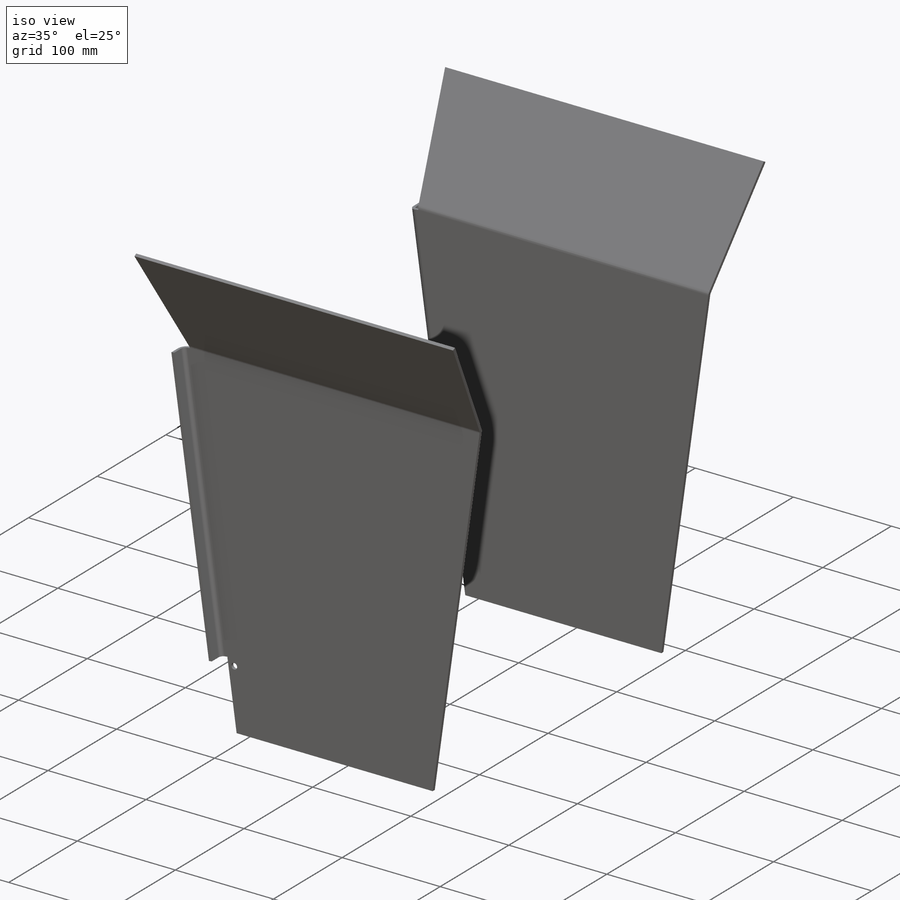
[diagram: iso view]
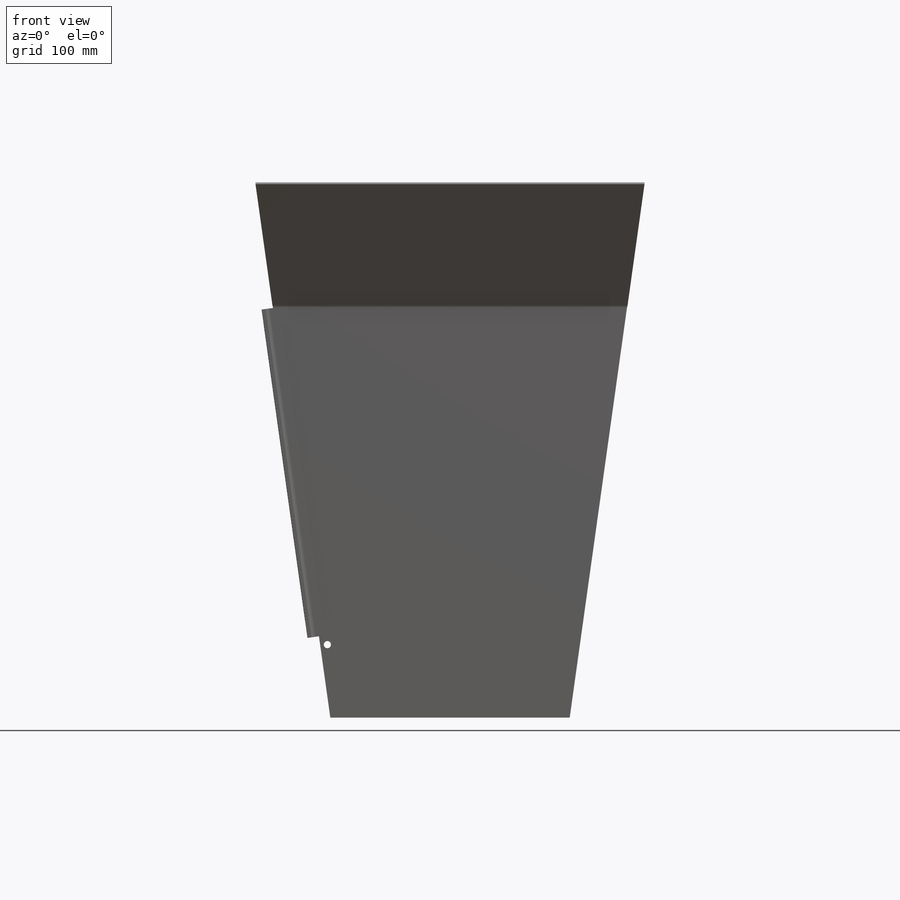
[diagram: front view]
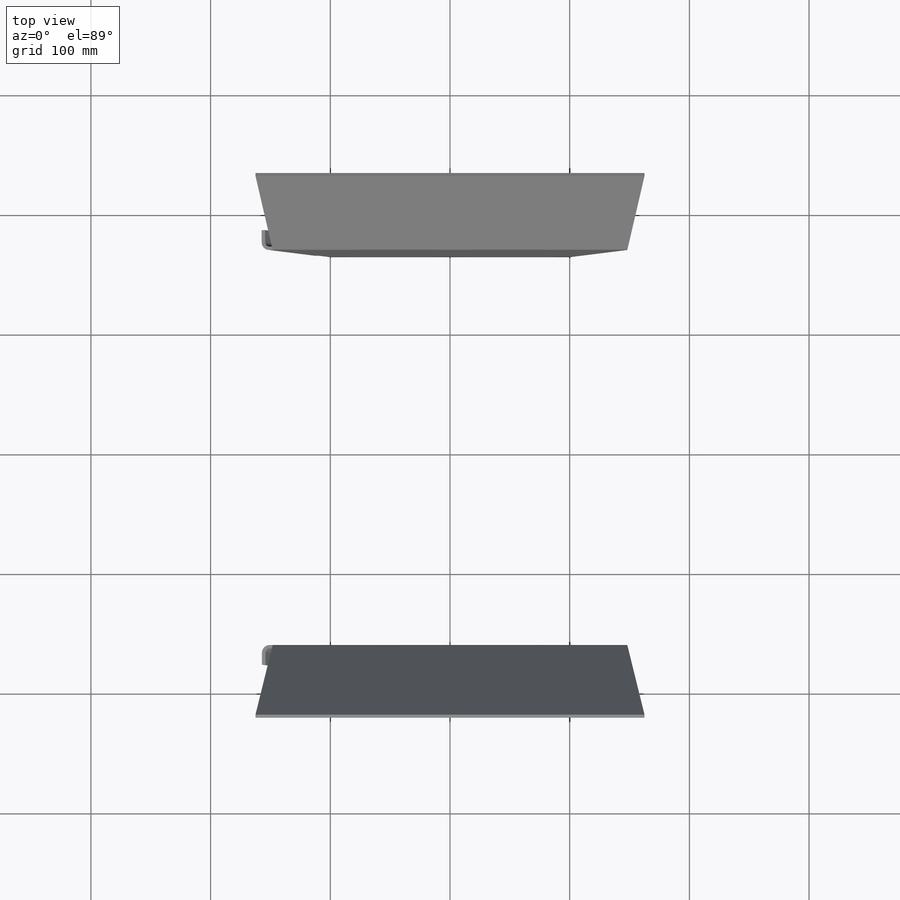
[diagram: top view]
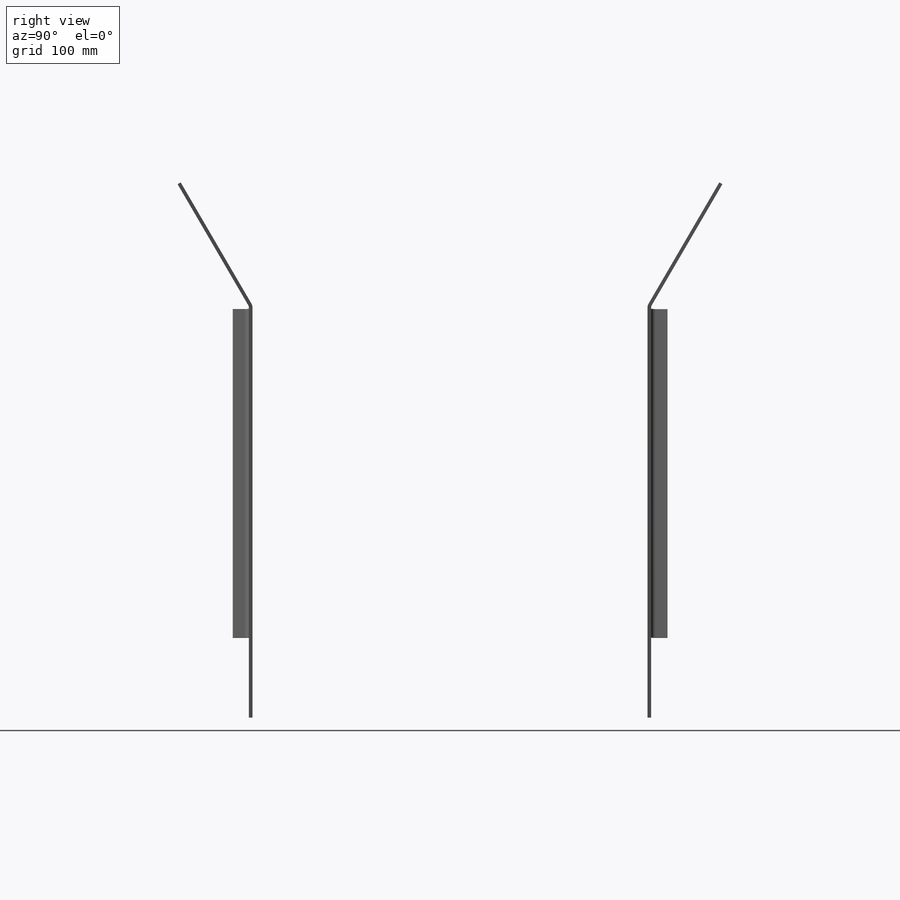
[diagram: right view]
SOLIDWORKS PART (.sldprt)
format: sldprt  version: not decoded by parser v0  size: 635,904 bytes
history: native  units: mm
features: sketch x9, hole x7, sheet_metal_op x7, plane x4, material x3, extrude x2, cut_extrude x1, surface_op x1 + 12 further entries (+12 scaffold rows collapsed; 9 parser-record rows omitted)
feature tree (67):
  scaffold x12  (default folders/planes/origin — collapsed)
  material  "Material <nicht festgelegt>"
  material  "Aufsatz-Linear austragen2"
  material  "Aufsatz-Linear austragen19"
  "Zuschnittslistenelement8"
  "Zuschnittslistenelement18"
  plane  "Ebene vorne"
  sketch  "Skizze1"  dims[c1.D1=60.0mm c1.D2=60.0mm c1.D3=330.0mm c1.D4=165.0mm c1.D5=117.58mm c1.D6=344.38mm c2.D5=447.21mm]
  extrude  "Aufsatz-Linear austragen1"  Depth=325mm
  sketch  "Skizze2"  dims[D1=200.0mm D2=100.0mm]
  cut_extrude  "Schnitt-Linear austragen2"  Depth=325mm
  plane  "Oberfläche-Ebene4"
  plane  "Oberfläche-Ebene5"
  plane  "Oberfläche-Ebene6"
  surface_op  "Oberfläche-Zusammenfügen2"
  sketch  "Wanddicke auftragen4"  dims[c1.D1=3.0mm c2.D1=3.52mm c2.D2=0.39 c2.D3=0.0mm c2.D6=500.0mm c3.D1=0.0mm c3.D4=~30.263019deg c3.D5=1.0 c3.D8=0.0mm c3.D9=0.0mm c4.D1=3.52mm c4.D2=390.0mm c4.D3=0.0mm]
  extrude  "Volumenkörper übernehmen6"  Depth=0 Biegung-Winkel7=0
  sketch  "Skizze27"  dims[c1.D1=119.25mm c1.D2=277.0mm c1.D3=119.25mm c1.D4=277.0mm c2.D1=70.6mm c2.D3=68.6mm c3.D1=68.6mm c3.D4=277.0mm c3.D2=68.6mm c4.D1=68.6mm]
  sketch  "Skizze35"  dims[D1=68.7mm D2=277.0mm]
  sketch  "Skizze36"  dims[D1=13.88mm]
  sketch  "Skizze37"
  parser-record x9  (decoder bookkeeping rows leaked as tree rows — omitted from the tree; the rows remain in map.json)
  hole  "Ø6.0 (6) Durchmesser Bohrung1"  Diameter=6mm Depth=335.999mm
  sketch  "Skizze39"  dims[c1.D1=6.0mm c1.D2=61.0mm c2.D1=61.0mm c2.D2=6.0mm]
  sketch  "Skizze38"  dims[hole-wizard template sketch: 46 standard entries collapsed; hole parameters kept: c15.Bohrerdurchmesser=6.0mm c15.Bohrungstiefe=335.999mm c15.D3=~14.816244mm c15.Spitzenwinkel=118.0deg]
  sheet_metal_op  "Blech16"
  "Abwicklung16"
  hole  "Blech27"  Diameter=3.52mm
  sheet_metal_op  "Abwicklung16"
  hole  "Blech31"  Diameter=3.52mm
  sheet_metal_op  "Abwicklung16"
  "Abwickeln-<Biegung-Winkel6>2"
  "Abwickeln-<Skizzenbiegung3>1"
  hole  "Blech34"  Diameter=3.52mm
  sheet_metal_op  "Abwicklung34"
  "Abwickeln-<Biegung-Winkel7>1"
  hole  "Blech36"  Diameter=3.52mm
  sheet_metal_op  "Abwicklung34"
  "Abwickeln-<Biegung-Winkel7>2"
  "Abwickeln-<Skizzenbiegung2>1"
  hole  "Blech37"  Diameter=3.52mm
  sheet_metal_op  "Abwicklung16"
  "Abwickeln-<Biegung-Winkel6>3"
  "Abwickeln-<Skizzenbiegung3>1"
  hole  "Blech38"  Diameter=3.52mm
  sheet_metal_op  "Abwicklung34"
  "Abwickeln-<Biegung-Winkel7>3"
  "Abwickeln-<Skizzenbiegung2>1"
decode coverage: 18 of 27 modeling features carry decoded parameters; 12 rows unclassified (native names shown)
note: ~ marks probable driven/reference dimensions
summary: [note 2] (x7 features) parser:v0:name_prior (class ref resolved by constrained assignment + name prior)
note: suppression state not decoded; provenance and decode notes live in map.json
